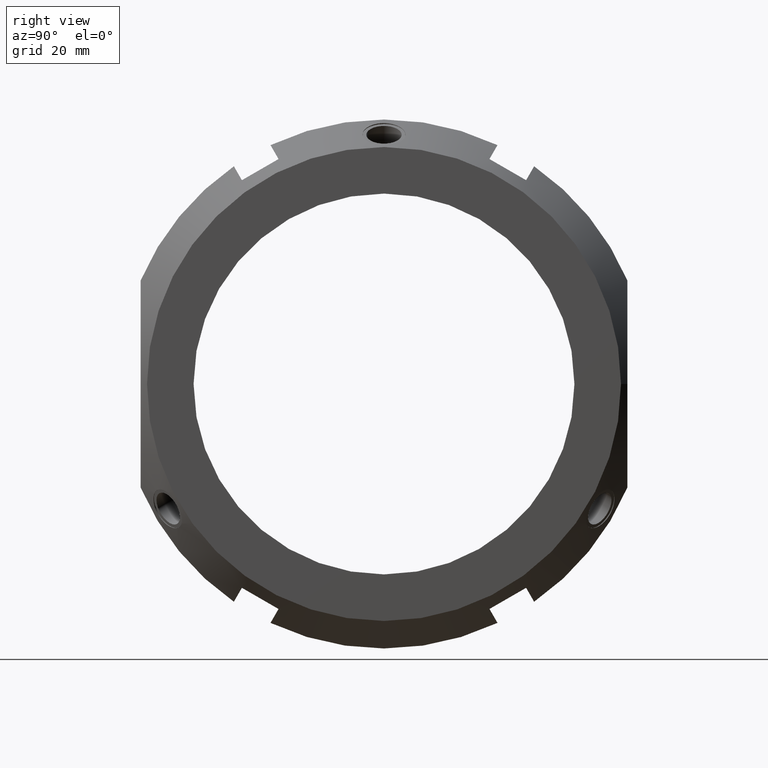
[diagram: clean part render]
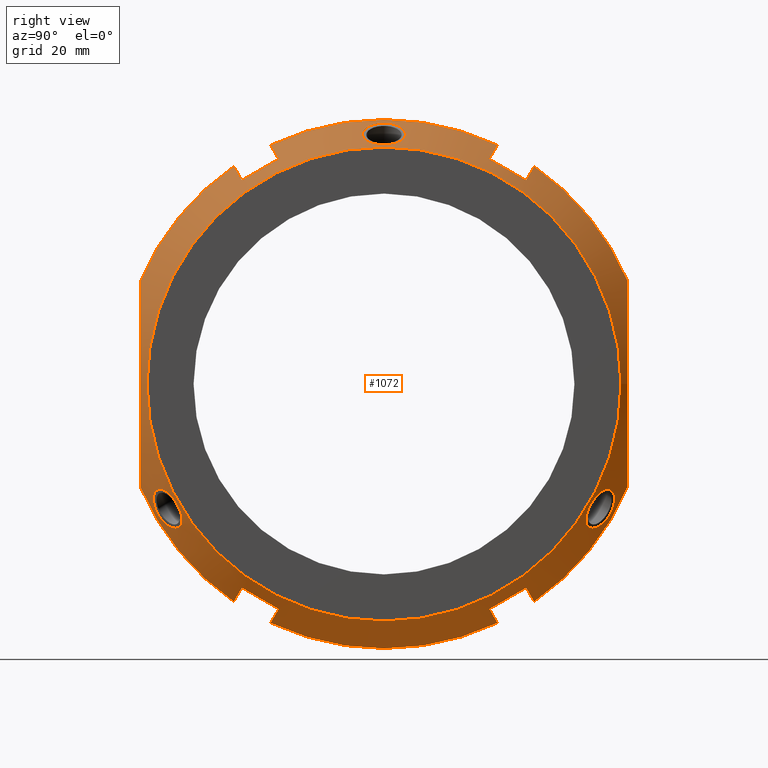
[diagram: same view with one face highlighted and labeled with its STEP entity id]
A machine part, right view. The second image highlights one B-rep face of the part: STEP entity #1072.
In plain terms, the highlighted conical surface has half-angle 30 deg.
Its self-contained STEP definition (entity closure, byte-faithful):
#90=CARTESIAN_POINT('',(27.30045009806862,33.580127018922148,-48.162486121389691));
#91=VERTEX_POINT('',#90);
#98=CARTESIAN_POINT('',(27.300450098068602,24.919872981077752,-53.162486121389691));
#99=VERTEX_POINT('',#98);
#100=CARTESIAN_POINT('',(27.300450098068602,24.919872981077752,-53.162486121389691));
#101=CARTESIAN_POINT('',(28.03795387010269,29.250000000000114,-50.662486121389598));
#102=CARTESIAN_POINT('',(27.30045009806862,33.580127018922148,-48.162486121389691));
#110=(BOUNDED_CURVE()B_SPLINE_CURVE(2,(#100,#101,#102),.UNSPECIFIED.,.F.,.U.)B_SPLINE_CURVE_WITH_KNOTS((3,3),(1.765369989633211,2.847655048235107),.UNSPECIFIED.)CURVE()GEOMETRIC_REPRESENTATION_ITEM()RATIONAL_B_SPLINE_CURVE((1.032306180598814,1.03606988777725,1.032306180598814))REPRESENTATION_ITEM(''));
#111=EDGE_CURVE('',#99,#91,#110,.T.);
#143=CARTESIAN_POINT('',(20.741669750802288,26.819712467020537,-56.453104637268119));
#144=VERTEX_POINT('',#143);
#145=CARTESIAN_POINT('',(20.741669750802274,26.819712467020548,-56.453104637268126));
#146=CARTESIAN_POINT('',(24.12421112272218,25.840117144533956,-54.756395767864547));
#147=CARTESIAN_POINT('',(27.300450098068598,24.919872981077749,-53.162486121389698));
#155=(BOUNDED_CURVE()B_SPLINE_CURVE(2,(#145,#146,#147),.UNSPECIFIED.,.F.,.U.)B_SPLINE_CURVE_WITH_KNOTS((3,3),(0.0,0.757991820914094),.UNSPECIFIED.)CURVE()GEOMETRIC_REPRESENTATION_ITEM()RATIONAL_B_SPLINE_CURVE((1.0,1.000491681364072,1.0))REPRESENTATION_ITEM(''));
#156=EDGE_CURVE('',#144,#99,#155,.T.);
#187=CARTESIAN_POINT('',(20.741669750802309,35.479966504864912,-51.453104637268126));
#188=VERTEX_POINT('',#187);
#195=CARTESIAN_POINT('',(27.30045009806862,33.580127018922141,-48.162486121389691));
#196=CARTESIAN_POINT('',(24.124211122750978,34.500371182369996,-49.756395767850101));
#197=CARTESIAN_POINT('',(20.741669750802274,35.479966504864919,-51.45310463726814));
#205=(BOUNDED_CURVE()B_SPLINE_CURVE(2,(#195,#196,#197),.UNSPECIFIED.,.F.,.U.)B_SPLINE_CURVE_WITH_KNOTS((3,3),(0.0,0.757991820914096),.UNSPECIFIED.)CURVE()GEOMETRIC_REPRESENTATION_ITEM()RATIONAL_B_SPLINE_CURVE((1.0,1.00049168146987,1.0))REPRESENTATION_ITEM(''));
#206=EDGE_CURVE('',#91,#188,#205,.T.);
#234=CARTESIAN_POINT('',(27.300450098068598,-33.580127018922205,-48.162486121389662));
#235=VERTEX_POINT('',#234);
#242=CARTESIAN_POINT('',(20.741669750802274,-35.479966504865004,-51.453104637268083));
#243=VERTEX_POINT('',#242);
#244=CARTESIAN_POINT('',(20.741669750802274,-35.479966504864997,-51.45310463726809));
#245=CARTESIAN_POINT('',(24.124211099984535,-34.500371188964721,-49.756395779272331));
#246=CARTESIAN_POINT('',(27.300450098068598,-33.580127018922205,-48.162486121389662));
#254=(BOUNDED_CURVE()B_SPLINE_CURVE(2,(#244,#245,#246),.UNSPECIFIED.,.F.,.U.)B_SPLINE_CURVE_WITH_KNOTS((3,3),(0.0,0.757991820914094),.UNSPECIFIED.)CURVE()GEOMETRIC_REPRESENTATION_ITEM()RATIONAL_B_SPLINE_CURVE((1.0,1.000491681101277,1.0))REPRESENTATION_ITEM(''));
#255=EDGE_CURVE('',#243,#235,#254,.T.);
#288=CARTESIAN_POINT('',(20.741669750802295,-26.819712467020604,-56.45310463726809));
#289=VERTEX_POINT('',#288);
#296=CARTESIAN_POINT('',(27.300450098068602,-24.91987298107782,-53.162486121389662));
#297=VERTEX_POINT('',#296);
#298=CARTESIAN_POINT('',(27.300450098068609,-24.919872981077823,-53.162486121389662));
#299=CARTESIAN_POINT('',(24.124211129981362,-25.840117142431282,-54.756395764222468));
#300=CARTESIAN_POINT('',(20.741669750802274,-26.819712467020604,-56.45310463726809));
#308=(BOUNDED_CURVE()B_SPLINE_CURVE(2,(#298,#299,#300),.UNSPECIFIED.,.F.,.U.)B_SPLINE_CURVE_WITH_KNOTS((3,3),(0.0,0.757991820914094),.UNSPECIFIED.)CURVE()GEOMETRIC_REPRESENTATION_ITEM()RATIONAL_B_SPLINE_CURVE((1.0,1.000491681601625,1.0))REPRESENTATION_ITEM(''));
#309=EDGE_CURVE('',#297,#289,#308,.T.);
#339=CARTESIAN_POINT('',(27.300450098068598,-33.580127018922205,-48.162486121389662));
#340=CARTESIAN_POINT('',(28.037953870102687,-29.249999999999865,-50.662486121389762));
#341=CARTESIAN_POINT('',(27.300450098068602,-24.91987298107782,-53.162486121389662));
#349=(BOUNDED_CURVE()B_SPLINE_CURVE(2,(#339,#340,#341),.UNSPECIFIED.,.F.,.U.)B_SPLINE_CURVE_WITH_KNOTS((3,3),(1.76536998963321,2.847655048235108),.UNSPECIFIED.)CURVE()GEOMETRIC_REPRESENTATION_ITEM()RATIONAL_B_SPLINE_CURVE((1.032306180598816,1.036069887777252,1.032306180598816))REPRESENTATION_ITEM(''));
#350=EDGE_CURVE('',#235,#297,#349,.T.);
#557=CARTESIAN_POINT('',(20.741669750802281,0.0,0.0));
#558=DIRECTION('',(1.0,0.0,0.0));
#559=DIRECTION('',(0.0,1.0,0.0));
#560=AXIS2_PLACEMENT_3D('',#557,#558,#559);
#561=CIRCLE('',#560,62.5);
#562=EDGE_CURVE('',#289,#144,#561,.T.);
#575=CARTESIAN_POINT('',(20.741669750802281,-57.500000000000028,-24.49489742783172));
#576=VERTEX_POINT('',#575);
#577=CARTESIAN_POINT('',(20.741669750802281,0.0,0.0));
#578=DIRECTION('',(1.0,0.0,0.0));
#579=DIRECTION('',(0.0,1.0,0.0));
#580=AXIS2_PLACEMENT_3D('',#577,#578,#579);
#581=CIRCLE('',#580,62.5);
#582=EDGE_CURVE('',#576,#243,#581,.T.);
#600=CARTESIAN_POINT('',(27.300450098068602,24.919872981077752,53.162486121389691));
#601=VERTEX_POINT('',#600);
#608=CARTESIAN_POINT('',(27.30045009806862,33.580127018922148,48.162486121389691));
#609=VERTEX_POINT('',#608);
#610=CARTESIAN_POINT('',(27.30045009806862,33.580127018922148,48.162486121389691));
#611=CARTESIAN_POINT('',(28.037953870102687,29.24999999999979,50.662486121389776));
#612=CARTESIAN_POINT('',(27.300450098068602,24.919872981077752,53.162486121389691));
#620=(BOUNDED_CURVE()B_SPLINE_CURVE(2,(#610,#611,#612),.UNSPECIFIED.,.F.,.U.)B_SPLINE_CURVE_WITH_KNOTS((3,3),(1.765369989633221,2.84765504823512),.UNSPECIFIED.)CURVE()GEOMETRIC_REPRESENTATION_ITEM()RATIONAL_B_SPLINE_CURVE((1.032306180598816,1.036069887777252,1.032306180598816))REPRESENTATION_ITEM(''));
#621=EDGE_CURVE('',#609,#601,#620,.T.);
#639=CARTESIAN_POINT('',(20.741669750802309,35.479966504864912,51.453104637268126));
#640=VERTEX_POINT('',#639);
#641=CARTESIAN_POINT('',(20.741669750802281,35.479966504864919,51.45310463726814));
#642=CARTESIAN_POINT('',(24.124211108817025,34.500371186406035,49.756395774840712));
#643=CARTESIAN_POINT('',(27.30045009806862,33.580127018922148,48.162486121389691));
#651=(BOUNDED_CURVE()B_SPLINE_CURVE(2,(#641,#642,#643),.UNSPECIFIED.,.F.,.U.)B_SPLINE_CURVE_WITH_KNOTS((3,3),(0.0,0.719859501257563),.UNSPECIFIED.)CURVE()GEOMETRIC_REPRESENTATION_ITEM()RATIONAL_B_SPLINE_CURVE((1.0,1.001312832313107,1.001642168804647))REPRESENTATION_ITEM(''));
#652=EDGE_CURVE('',#640,#609,#651,.T.);
#669=CARTESIAN_POINT('',(20.741669750802288,26.819712467020537,56.453104637268119));
#670=VERTEX_POINT('',#669);
#677=CARTESIAN_POINT('',(27.300450098068602,24.919872981077752,53.162486121389691));
#678=CARTESIAN_POINT('',(24.124211108934695,25.840117148527533,54.756395774781623));
#679=CARTESIAN_POINT('',(20.741669750802281,26.819712467020548,56.453104637268126));
#687=(BOUNDED_CURVE()B_SPLINE_CURVE(2,(#677,#678,#679),.UNSPECIFIED.,.F.,.U.)B_SPLINE_CURVE_WITH_KNOTS((3,3),(1.201968316298069,1.921827817513525),.UNSPECIFIED.)CURVE()GEOMETRIC_REPRESENTATION_ITEM()RATIONAL_B_SPLINE_CURVE((1.001642168811793,1.001312832318774,1.0))REPRESENTATION_ITEM(''));
#688=EDGE_CURVE('',#601,#670,#687,.T.);
#700=CARTESIAN_POINT('',(27.300450098068598,-33.580127018922205,48.162486121389662));
#701=VERTEX_POINT('',#700);
#708=CARTESIAN_POINT('',(27.300450098068602,-24.91987298107782,53.162486121389662));
#709=VERTEX_POINT('',#708);
#710=CARTESIAN_POINT('',(27.300450098068602,-24.91987298107782,53.162486121389662));
#711=CARTESIAN_POINT('',(28.03795387010268,-29.250000000000171,50.662486121389563));
#712=CARTESIAN_POINT('',(27.300450098068598,-33.580127018922205,48.162486121389662));
#720=(BOUNDED_CURVE()B_SPLINE_CURVE(2,(#710,#711,#712),.UNSPECIFIED.,.F.,.U.)B_SPLINE_CURVE_WITH_KNOTS((3,3),(1.765369989633213,2.84765504823511),.UNSPECIFIED.)CURVE()GEOMETRIC_REPRESENTATION_ITEM()RATIONAL_B_SPLINE_CURVE((1.032306180598815,1.036069887777252,1.032306180598815))REPRESENTATION_ITEM(''));
#721=EDGE_CURVE('',#709,#701,#720,.T.);
#739=CARTESIAN_POINT('',(20.741669750802295,-26.819712467020604,56.45310463726809));
#740=VERTEX_POINT('',#739);
#741=CARTESIAN_POINT('',(20.741669750802281,-26.819712467020601,56.453104637268083));
#742=CARTESIAN_POINT('',(24.124211108791776,-25.840117148569028,54.756395774853353));
#743=CARTESIAN_POINT('',(27.300450098068602,-24.91987298107782,53.162486121389662));
#751=(BOUNDED_CURVE()B_SPLINE_CURVE(2,(#741,#742,#743),.UNSPECIFIED.,.F.,.U.)B_SPLINE_CURVE_WITH_KNOTS((3,3),(0.0,0.719859501258785),.UNSPECIFIED.)CURVE()GEOMETRIC_REPRESENTATION_ITEM()RATIONAL_B_SPLINE_CURVE((1.0,1.001312832306064,1.001642168795835))REPRESENTATION_ITEM(''));
#752=EDGE_CURVE('',#740,#709,#751,.T.);
#769=CARTESIAN_POINT('',(20.741669750802274,-35.479966504865004,51.453104637268083));
#770=VERTEX_POINT('',#769);
#777=CARTESIAN_POINT('',(27.300450098068598,-33.580127018922205,48.162486121389662));
#778=CARTESIAN_POINT('',(24.124211107707978,-34.500371186727619,49.756395775397564));
#779=CARTESIAN_POINT('',(20.741669750802281,-35.479966504864997,51.453104637268083));
#787=(BOUNDED_CURVE()B_SPLINE_CURVE(2,(#777,#778,#779),.UNSPECIFIED.,.F.,.U.)B_SPLINE_CURVE_WITH_KNOTS((3,3),(1.201968315862269,1.921827817513524),.UNSPECIFIED.)CURVE()GEOMETRIC_REPRESENTATION_ITEM()RATIONAL_B_SPLINE_CURVE((1.001642168734397,1.001312832257376,1.0))REPRESENTATION_ITEM(''));
#788=EDGE_CURVE('',#701,#770,#787,.T.);
#800=CARTESIAN_POINT('',(20.741669750802281,57.500000000000043,24.494897427831667));
#801=VERTEX_POINT('',#800);
#802=CARTESIAN_POINT('',(20.741669750802281,0.0,0.0));
#803=DIRECTION('',(1.0,0.0,0.0));
#804=DIRECTION('',(0.0,1.0,0.0));
#805=AXIS2_PLACEMENT_3D('',#802,#803,#804);
#806=CIRCLE('',#805,62.5);
#807=EDGE_CURVE('',#801,#640,#806,.T.);
#826=CARTESIAN_POINT('',(20.741669750802281,-57.500000000000043,24.494897427831667));
#827=VERTEX_POINT('',#826);
#834=CARTESIAN_POINT('',(20.741669750802281,0.0,0.0));
#835=DIRECTION('',(1.0,0.0,0.0));
#836=DIRECTION('',(0.0,1.0,0.0));
#837=AXIS2_PLACEMENT_3D('',#834,#835,#836);
#838=CIRCLE('',#837,62.5);
#839=EDGE_CURVE('',#770,#827,#838,.T.);
#851=CARTESIAN_POINT('',(20.741669750802281,57.500000000000028,-24.49489742783172));
#852=VERTEX_POINT('',#851);
#853=CARTESIAN_POINT('',(20.741669750802281,57.500000000000028,-24.494897427831752));
#854=CARTESIAN_POINT('',(37.369357503463448,57.500000000000036,-2.220446E-014));
#855=CARTESIAN_POINT('',(20.741669750802281,57.500000000000043,24.49489742783171));
#863=(BOUNDED_CURVE()B_SPLINE_CURVE(2,(#853,#854,#855),.UNSPECIFIED.,.F.,.U.)B_SPLINE_CURVE_WITH_KNOTS((3,3),(0.0,5.19615242270662),.UNSPECIFIED.)CURVE()GEOMETRIC_REPRESENTATION_ITEM()RATIONAL_B_SPLINE_CURVE((1.0,1.086956521739127,1.0))REPRESENTATION_ITEM(''));
#864=EDGE_CURVE('',#852,#801,#863,.T.);
#882=CARTESIAN_POINT('',(20.741669750802281,-57.500000000000043,24.49489742783171));
#883=CARTESIAN_POINT('',(37.369357503463448,-57.500000000000036,-2.220446E-014));
#884=CARTESIAN_POINT('',(20.741669750802281,-57.500000000000028,-24.494897427831752));
#892=(BOUNDED_CURVE()B_SPLINE_CURVE(2,(#882,#883,#884),.UNSPECIFIED.,.F.,.U.)B_SPLINE_CURVE_WITH_KNOTS((3,3),(0.0,5.19615242270662),.UNSPECIFIED.)CURVE()GEOMETRIC_REPRESENTATION_ITEM()RATIONAL_B_SPLINE_CURVE((1.0,1.086956521739127,1.0))REPRESENTATION_ITEM(''));
#893=EDGE_CURVE('',#827,#576,#892,.T.);
#899=CARTESIAN_POINT('',(26.370834875401137,0.0,0.0));
#900=DIRECTION('',(-1.0,0.0,0.0));
#901=DIRECTION('',(0.0,1.0,0.0));
#902=AXIS2_PLACEMENT_3D('',#899,#900,#901);
#903=CONICAL_SURFACE('',#902,59.250000000000007,29.999999999999972);
#904=ORIENTED_EDGE('',*,*,#206,.T.);
#905=CARTESIAN_POINT('',(20.741669750802281,0.0,0.0));
#906=DIRECTION('',(1.0,0.0,0.0));
#907=DIRECTION('',(0.0,1.0,0.0));
#908=AXIS2_PLACEMENT_3D('',#905,#906,#907);
#909=CIRCLE('',#908,62.5);
#910=EDGE_CURVE('',#188,#852,#909,.T.);
#911=ORIENTED_EDGE('',*,*,#910,.T.);
#912=ORIENTED_EDGE('',*,*,#864,.T.);
#913=ORIENTED_EDGE('',*,*,#807,.T.);
#914=ORIENTED_EDGE('',*,*,#652,.T.);
#915=ORIENTED_EDGE('',*,*,#621,.T.);
#916=ORIENTED_EDGE('',*,*,#688,.T.);
#917=CARTESIAN_POINT('',(20.741669750802281,0.0,0.0));
#918=DIRECTION('',(1.0,0.0,0.0));
#919=DIRECTION('',(0.0,1.0,0.0));
#920=AXIS2_PLACEMENT_3D('',#917,#918,#919);
#921=CIRCLE('',#920,62.5);
#922=EDGE_CURVE('',#670,#740,#921,.T.);
#923=ORIENTED_EDGE('',*,*,#922,.T.);
#924=ORIENTED_EDGE('',*,*,#752,.T.);
#925=ORIENTED_EDGE('',*,*,#721,.T.);
#926=ORIENTED_EDGE('',*,*,#788,.T.);
#927=ORIENTED_EDGE('',*,*,#839,.T.);
#928=ORIENTED_EDGE('',*,*,#893,.T.);
#929=ORIENTED_EDGE('',*,*,#582,.T.);
#930=ORIENTED_EDGE('',*,*,#255,.T.);
#931=ORIENTED_EDGE('',*,*,#350,.T.);
#932=ORIENTED_EDGE('',*,*,#309,.T.);
#933=ORIENTED_EDGE('',*,*,#562,.T.);
#934=ORIENTED_EDGE('',*,*,#156,.T.);
#935=ORIENTED_EDGE('',*,*,#111,.T.);
#936=EDGE_LOOP('',(#904,#911,#912,#913,#914,#915,#916,#923,#924,#925,#926,#927,#928,#929,#930,#931,#932,#933,#934,#935));
#937=FACE_OUTER_BOUND('',#936,.T.);
#938=CARTESIAN_POINT('',(31.999999999999989,56.000000000000007,0.0));
#939=VERTEX_POINT('',#938);
#940=CARTESIAN_POINT('',(31.999999999999989,0.0,0.0));
#941=DIRECTION('',(1.0,0.0,0.0));
#942=DIRECTION('',(0.0,1.0,0.0));
#943=AXIS2_PLACEMENT_3D('',#940,#941,#942);
#944=CIRCLE('',#943,56.000000000000007);
#945=EDGE_CURVE('',#939,#939,#944,.T.);
#946=ORIENTED_EDGE('',*,*,#945,.F.);
#947=EDGE_LOOP('',(#946));
#948=FACE_BOUND('',#947,.T.);
#949=CARTESIAN_POINT('',(26.718900620939689,5.095251143877935,58.828802729506194));
#950=VERTEX_POINT('',#949);
#951=CARTESIAN_POINT('',(26.718900620939689,5.095251143877935,58.828802729506194));
#952=CARTESIAN_POINT('',(27.257790642434099,5.068404361781673,58.518834878410061));
#953=CARTESIAN_POINT('',(27.833686564851966,4.918943303756376,58.198448863078731));
#954=CARTESIAN_POINT('',(28.895980495238597,4.373045629532342,57.626956868965152));
#955=CARTESIAN_POINT('',(29.382155945023001,3.976621763687872,57.375425118946097));
#956=CARTESIAN_POINT('',(30.150705379520375,3.078489394392665,56.986266085270287));
#957=CARTESIAN_POINT('',(30.485833300174072,2.515099923007683,56.821841179007784));
#958=CARTESIAN_POINT('',(30.930840865937562,1.286982185170681,56.605937965513995));
#959=CARTESIAN_POINT('',(31.040440865264955,0.622233152727561,56.554001724742648));
#960=CARTESIAN_POINT('',(31.040440865264955,-0.622233152727561,56.554001724742648));
#961=CARTESIAN_POINT('',(30.930840865937562,-1.286982185170683,56.605937965513995));
#962=CARTESIAN_POINT('',(30.485833300174072,-2.515099923007686,56.821841179007784));
#963=CARTESIAN_POINT('',(30.150705379520375,-3.078489394392665,56.986266085270287));
#964=CARTESIAN_POINT('',(29.382155945023001,-3.976621763687872,57.375425118946097));
#965=CARTESIAN_POINT('',(28.895980495238604,-4.37304562953234,57.626956868965152));
#966=CARTESIAN_POINT('',(27.833686564851977,-4.918943303756374,58.198448863078731));
#967=CARTESIAN_POINT('',(27.257790642434099,-5.068404361781676,58.518834878410061));
#968=CARTESIAN_POINT('',(26.1481270430256,-5.123686322228557,59.157109902309024));
#969=CARTESIAN_POINT('',(25.540806587723608,-5.018583878622531,59.518631714262582));
#970=CARTESIAN_POINT('',(24.427015826367256,-4.526123381215362,60.202980467457039));
#971=CARTESIAN_POINT('',(23.920246243029901,-4.138778735441802,60.525329861545359));
#972=CARTESIAN_POINT('',(23.120653220000861,-3.227655688789944,61.043031358963226));
#973=CARTESIAN_POINT('',(22.776005682300031,-2.644876948238216,61.271828020507712));
#974=CARTESIAN_POINT('',(22.319286738317999,-1.360595576186219,61.577528619902246));
#975=CARTESIAN_POINT('',(22.206981746663665,-0.659073507430517,61.654001724742649));
#976=CARTESIAN_POINT('',(22.206981746663665,0.659073507430516,61.654001724742649));
#977=CARTESIAN_POINT('',(22.319286738317999,1.360595576186212,61.577528619902239));
#978=CARTESIAN_POINT('',(22.776005682300031,2.64487694823821,61.271828020507698));
#979=CARTESIAN_POINT('',(23.120653220000868,3.227655688789943,61.043031358963226));
#980=CARTESIAN_POINT('',(23.920246243029901,4.138778735441802,60.525329861545359));
#981=CARTESIAN_POINT('',(24.427015826367256,4.526123381215362,60.202980467457039));
#982=CARTESIAN_POINT('',(25.540806587723608,5.01858387862253,59.518631714262597));
#983=CARTESIAN_POINT('',(26.148127043025603,5.123686322228556,59.157109902309024));
#984=CARTESIAN_POINT('',(26.718900620939692,5.095251143877936,58.828802729506194));
#985=B_SPLINE_CURVE_WITH_KNOTS('',3,(#951,#952,#953,#954,#955,#956,#957,#958,#959,#960,#961,#962,#963,#964,#965,#966,#967,#968,#969,#970,#971,#972,#973,#974,#975,#976,#977,#978,#979,#980,#981,#982,#983,#984),.UNSPECIFIED.,.T.,.U.,(4,2,2,2,2,2,2,2,2,2,2,2,2,2,2,2,4),(0.0,0.18667697938404,0.373353958768081,0.560023904586349,0.746693850404617,0.933363796222886,1.120033742041154,1.306710721425195,1.493387700809235,1.691109468122251,1.888831235435266,2.086553287664422,2.284275339893577,2.481997392122731,2.679719444351886,2.877441211664902,3.075162978977918),.UNSPECIFIED.);
#986=EDGE_CURVE('',#950,#950,#985,.T.);
#987=ORIENTED_EDGE('',*,*,#986,.T.);
#988=EDGE_LOOP('',(#987));
#989=FACE_BOUND('',#988,.T.);
#990=CARTESIAN_POINT('',(26.718900620939692,-53.494863209914669,-25.001784435493075));
#991=VERTEX_POINT('',#990);
#992=CARTESIAN_POINT('',(26.718900620939692,-53.494863209914669,-25.001784435493075));
#993=CARTESIAN_POINT('',(27.257790642434102,-53.212999785460809,-24.870050505250237));
#994=CARTESIAN_POINT('',(27.833686564851973,-52.860806828153954,-24.839294570710972));
#995=CARTESIAN_POINT('',(28.895980495238597,-52.092931406080169,-25.026309827399047));
#996=CARTESIAN_POINT('',(29.382155945023001,-51.676886587783066,-25.24385709087727));
#997=CARTESIAN_POINT('',(30.150705379520375,-50.890798793860014,-25.827083021810118));
#998=CARTESIAN_POINT('',(30.485833300174082,-50.466707912329298,-26.232780163122946));
#999=CARTESIAN_POINT('',(30.930840865937576,-49.665671375766479,-27.188409716181173));
#1000=CARTESIAN_POINT('',(31.040440865264944,-49.288318755659866,-27.738131145032359));
#1001=CARTESIAN_POINT('',(31.040440865264944,-48.666085602932313,-28.815870579710264));
#1002=CARTESIAN_POINT('',(30.930840865937569,-48.3786891905958,-29.417528249332811));
#1003=CARTESIAN_POINT('',(30.485833300174065,-47.951607989321616,-30.58906101588483));
#1004=CARTESIAN_POINT('',(30.150705379520367,-47.812309399467338,-31.159183063460162));
#1005=CARTESIAN_POINT('',(29.382155945022998,-47.7002648240952,-32.131568028068827));
#1006=CARTESIAN_POINT('',(28.895980495238597,-47.719885776547819,-32.600647041566098));
#1007=CARTESIAN_POINT('',(27.833686564851973,-47.941863524397583,-33.359154292367734));
#1008=CARTESIAN_POINT('',(27.257790642434099,-48.144595423679135,-33.648784373159806));
#1009=CARTESIAN_POINT('',(26.1481270430256,-48.669716828753323,-34.015797467227301));
#1010=CARTESIAN_POINT('',(25.540806587723601,-49.035355123730291,-34.105536987041432));
#1011=CARTESIAN_POINT('',(24.427015826367253,-49.874248777748477,-34.021228062523726));
#1012=CARTESIAN_POINT('',(23.920246243029901,-50.347083864810273,-33.846952456308102));
#1013=CARTESIAN_POINT('',(23.120653220000868,-51.25098803647731,-33.316747500643046));
#1014=CARTESIAN_POINT('',(22.776005682300031,-51.740521127951773,-32.926444637311995));
#1015=CARTESIAN_POINT('',(22.319286738318006,-52.647406299005567,-31.967074643205102));
#1016=CARTESIAN_POINT('',(22.206981746663654,-53.064394984881467,-31.397775262767453));
#1017=CARTESIAN_POINT('',(22.206981746663658,-53.723468492311987,-30.256226461975182));
#1018=CARTESIAN_POINT('',(22.319286738317999,-54.008001875191795,-29.610453976697112));
#1019=CARTESIAN_POINT('',(22.776005682300031,-54.38539807619,-28.345383383195685));
#1020=CARTESIAN_POINT('',(23.120653220000868,-54.478643725267247,-27.726283858320151));
#1021=CARTESIAN_POINT('',(23.920246243029901,-54.485862600252077,-26.678377405237235));
#1022=CARTESIAN_POINT('',(24.427015826367253,-54.400372158963833,-26.181752404933285));
#1023=CARTESIAN_POINT('',(25.540806587723608,-54.05393900235282,-25.413094727221129));
#1024=CARTESIAN_POINT('',(26.14812704302561,-53.793403150981874,-25.141312435081712));
#1025=CARTESIAN_POINT('',(26.718900620939692,-53.494863209914669,-25.001784435493079));
#1026=B_SPLINE_CURVE_WITH_KNOTS('',3,(#992,#993,#994,#995,#996,#997,#998,#999,#1000,#1001,#1002,#1003,#1004,#1005,#1006,#1007,#1008,#1009,#1010,#1011,#1012,#1013,#1014,#1015,#1016,#1017,#1018,#1019,#1020,#1021,#1022,#1023,#1024,#1025),.UNSPECIFIED.,.T.,.U.,(4,2,2,2,2,2,2,2,2,2,2,2,2,2,2,2,4),(0.0,0.18667697938404,0.37335395876808,0.560023904586349,0.746693850404617,0.933363796222886,1.120033742041154,1.306710721425195,1.493387700809234,1.69110946812225,1.888831235435266,2.08655328766442,2.284275339893575,2.48199739212273,2.679719444351885,2.877441211664901,3.075162978977916),.UNSPECIFIED.);
#1027=EDGE_CURVE('',#991,#991,#1026,.T.);
#1028=ORIENTED_EDGE('',*,*,#1027,.T.);
#1029=EDGE_LOOP('',(#1028));
#1030=FACE_BOUND('',#1029,.T.);
#1031=CARTESIAN_POINT('',(26.718900620939692,48.399612066036717,-33.827018294013136));
#1032=VERTEX_POINT('',#1031);
#1033=CARTESIAN_POINT('',(26.718900620939692,48.399612066036717,-33.827018294013136));
#1034=CARTESIAN_POINT('',(27.257790642434102,48.144595423679121,-33.648784373159842));
#1035=CARTESIAN_POINT('',(27.833686564851977,47.941863524397554,-33.359154292367769));
#1036=CARTESIAN_POINT('',(28.895980495238597,47.719885776547798,-32.600647041566127));
#1037=CARTESIAN_POINT('',(29.382155945023001,47.700264824095171,-32.131568028068848));
#1038=CARTESIAN_POINT('',(30.150705379520375,47.812309399467317,-31.159183063460191));
#1039=CARTESIAN_POINT('',(30.485833300174072,47.951607989321587,-30.589061015884852));
#1040=CARTESIAN_POINT('',(30.930840865937562,48.378689190595772,-29.417528249332836));
#1041=CARTESIAN_POINT('',(31.040440865264944,48.666085602932299,-28.8158705797103));
#1042=CARTESIAN_POINT('',(31.040440865264944,49.288318755659859,-27.738131145032394));
#1043=CARTESIAN_POINT('',(30.930840865937562,49.665671375766458,-27.188409716181191));
#1044=CARTESIAN_POINT('',(30.485833300174072,50.466707912329277,-26.232780163122968));
#1045=CARTESIAN_POINT('',(30.150705379520364,50.890798793859986,-25.827083021810147));
#1046=CARTESIAN_POINT('',(29.382155945022994,51.676886587783045,-25.243857090877299));
#1047=CARTESIAN_POINT('',(28.895980495238586,52.092931406080147,-25.026309827399082));
#1048=CARTESIAN_POINT('',(27.833686564851963,52.86080682815394,-24.839294570711019));
#1049=CARTESIAN_POINT('',(27.257790642434088,53.212999785460795,-24.870050505250269));
#1050=CARTESIAN_POINT('',(26.148127043025589,53.79340315098186,-25.141312435081744));
#1051=CARTESIAN_POINT('',(25.540806587723598,54.053939002352813,-25.413094727221164));
#1052=CARTESIAN_POINT('',(24.427015826367246,54.400372158963812,-26.18175240493332));
#1053=CARTESIAN_POINT('',(23.920246243029901,54.485862600252055,-26.678377405237271));
#1054=CARTESIAN_POINT('',(23.120653220000868,54.478643725267233,-27.72628385832018));
#1055=CARTESIAN_POINT('',(22.776005682300038,54.385398076189979,-28.345383383195717));
#1056=CARTESIAN_POINT('',(22.319286738318009,54.008001875191773,-29.610453976697144));
#1057=CARTESIAN_POINT('',(22.206981746663665,53.72346849231198,-30.256226461975206));
#1058=CARTESIAN_POINT('',(22.206981746663665,53.06439498488146,-31.397775262767489));
#1059=CARTESIAN_POINT('',(22.319286738318006,52.647406299005546,-31.967074643205123));
#1060=CARTESIAN_POINT('',(22.776005682300031,51.740521127951752,-32.926444637312017));
#1061=CARTESIAN_POINT('',(23.120653220000868,51.250988036477295,-33.316747500643089));
#1062=CARTESIAN_POINT('',(23.920246243029901,50.347083864810251,-33.846952456308145));
#1063=CARTESIAN_POINT('',(24.427015826367253,49.874248777748448,-34.021228062523761));
#1064=CARTESIAN_POINT('',(25.540806587723601,49.035355123730263,-34.105536987041468));
#1065=CARTESIAN_POINT('',(26.1481270430256,48.669716828753295,-34.01579746722733));
#1066=CARTESIAN_POINT('',(26.718900620939689,48.39961206603671,-33.827018294013136));
#1067=B_SPLINE_CURVE_WITH_KNOTS('',3,(#1033,#1034,#1035,#1036,#1037,#1038,#1039,#1040,#1041,#1042,#1043,#1044,#1045,#1046,#1047,#1048,#1049,#1050,#1051,#1052,#1053,#1054,#1055,#1056,#1057,#1058,#1059,#1060,#1061,#1062,#1063,#1064,#1065,#1066),.UNSPECIFIED.,.T.,.U.,(4,2,2,2,2,2,2,2,2,2,2,2,2,2,2,2,4),(0.0,0.18667697938404,0.37335395876808,0.560023904586349,0.746693850404617,0.933363796222886,1.120033742041154,1.306710721425195,1.493387700809235,1.69110946812225,1.888831235435265,2.08655328766442,2.284275339893575,2.48199739212273,2.679719444351886,2.877441211664901,3.075162978977916),.UNSPECIFIED.);
#1068=EDGE_CURVE('',#1032,#1032,#1067,.T.);
#1069=ORIENTED_EDGE('',*,*,#1068,.T.);
#1070=EDGE_LOOP('',(#1069));
#1071=FACE_BOUND('',#1070,.T.);
#1072=ADVANCED_FACE('',(#937,#948,#989,#1030,#1071),#903,.T.);